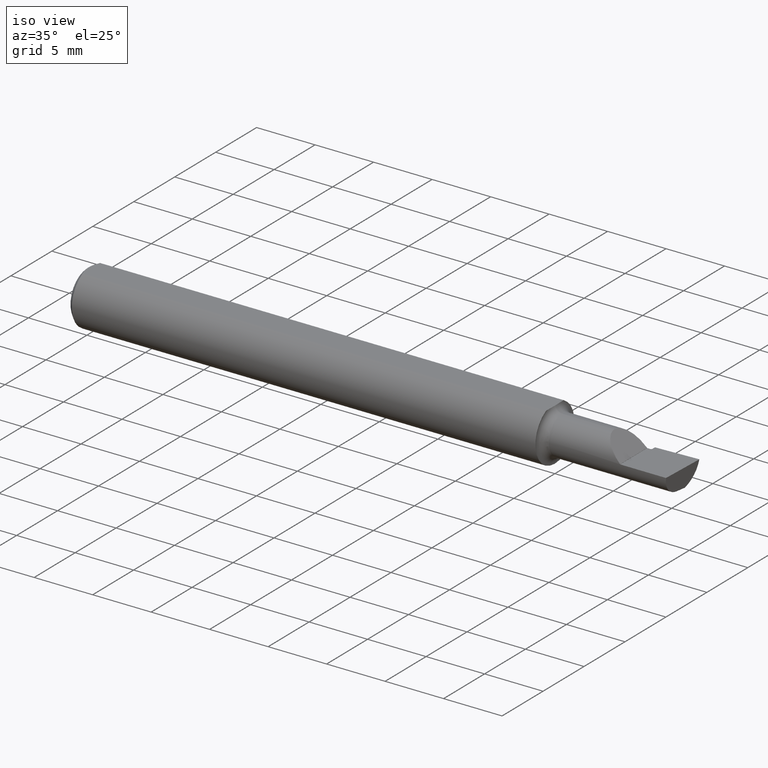
[diagram: clean part render]
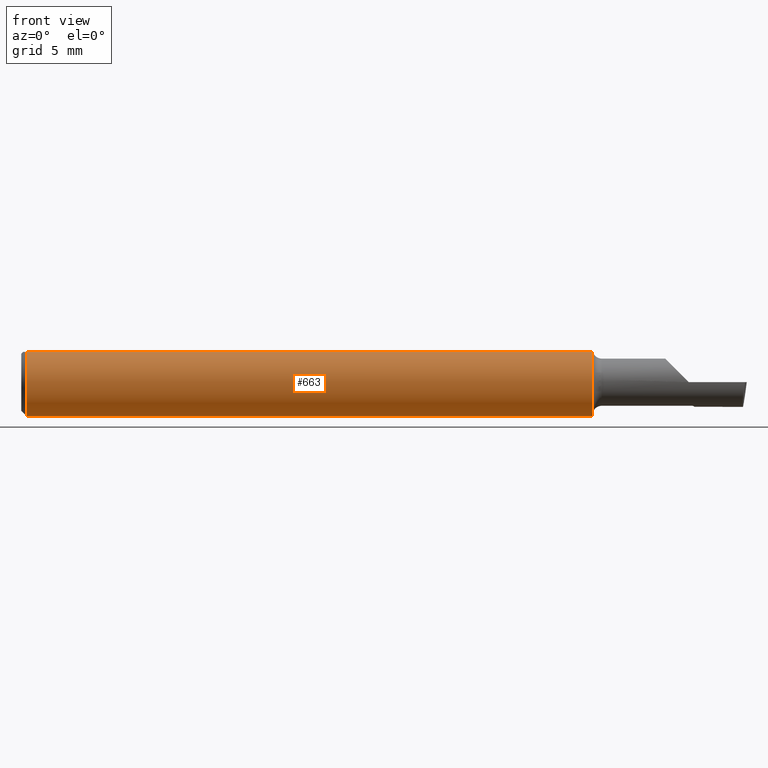
[diagram: tour spotlight — one face highlighted and labeled with its STEP entity id]
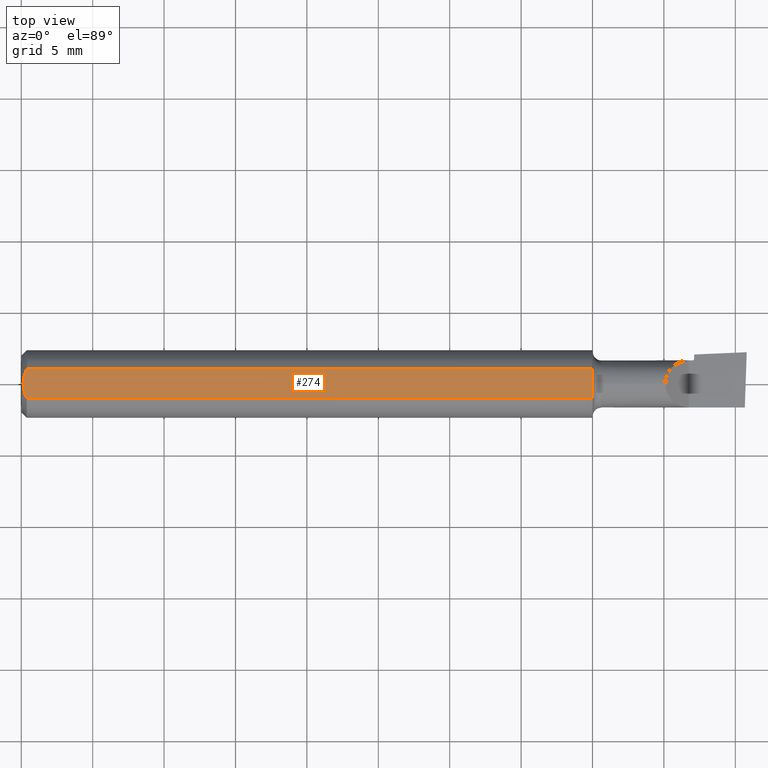
[diagram: tour spotlight — one face highlighted and labeled with its STEP entity id]
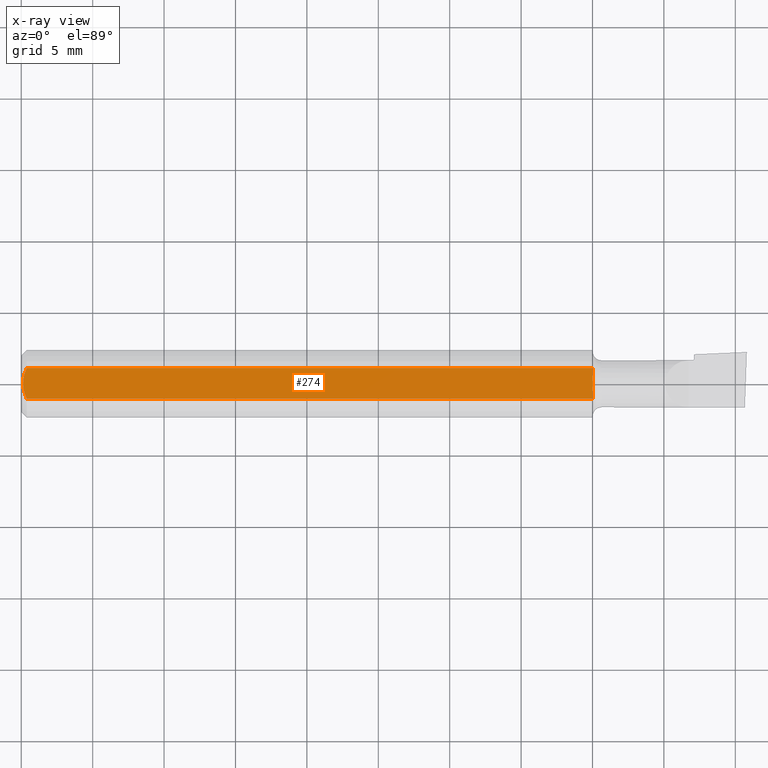
[diagram: x-ray of the same camera — body ghosted, this tour face saturated]
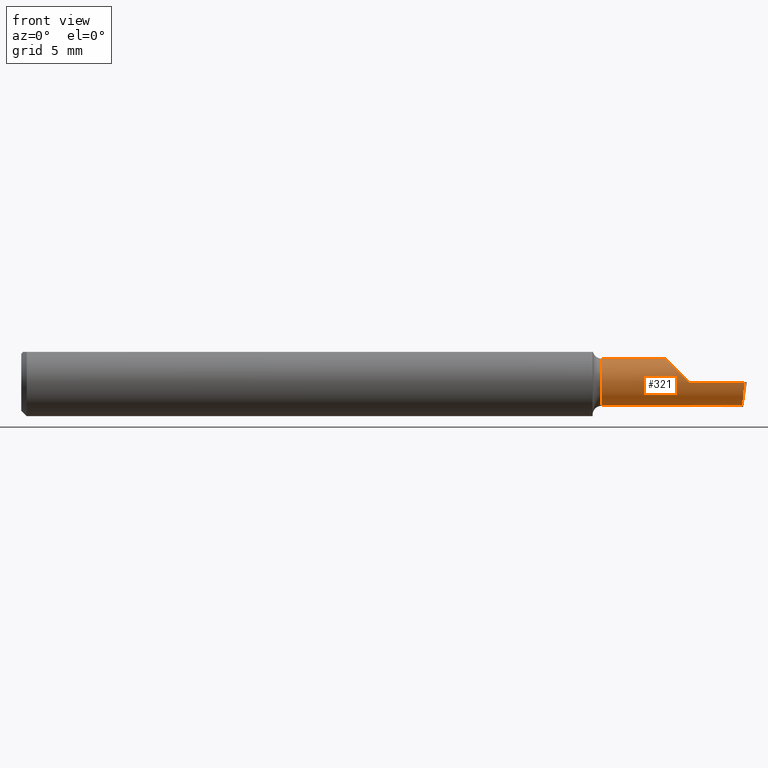
[diagram: tour spotlight — one face highlighted and labeled with its STEP entity id]
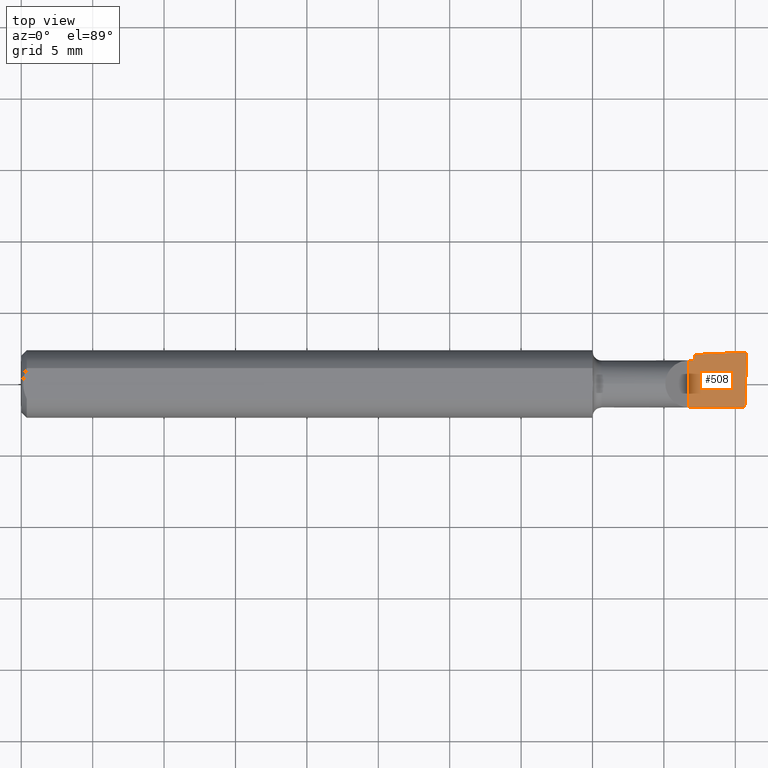
[diagram: tour spotlight — one face highlighted and labeled with its STEP entity id]
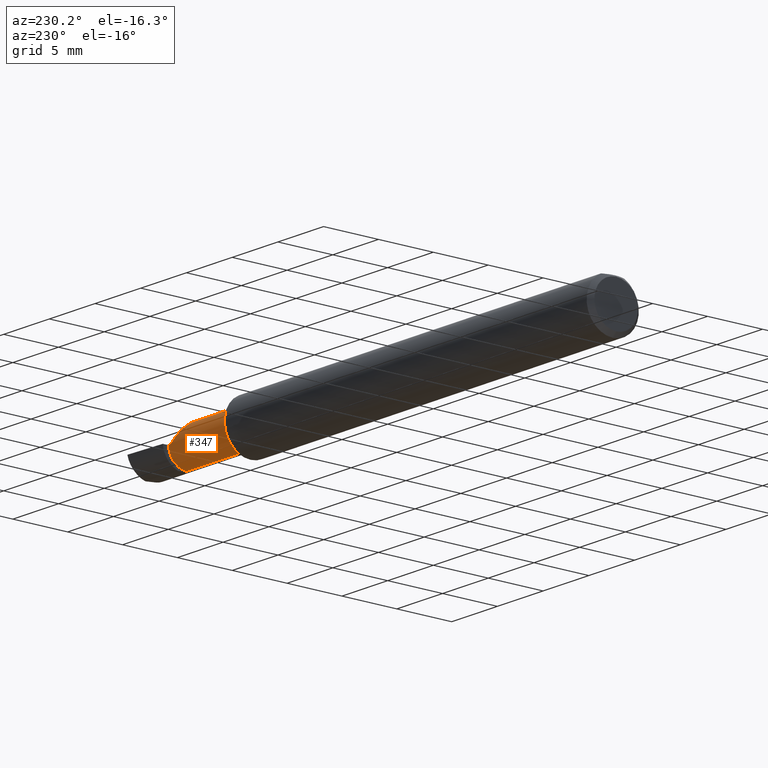
[diagram: tour spotlight — one face highlighted and labeled with its STEP entity id]
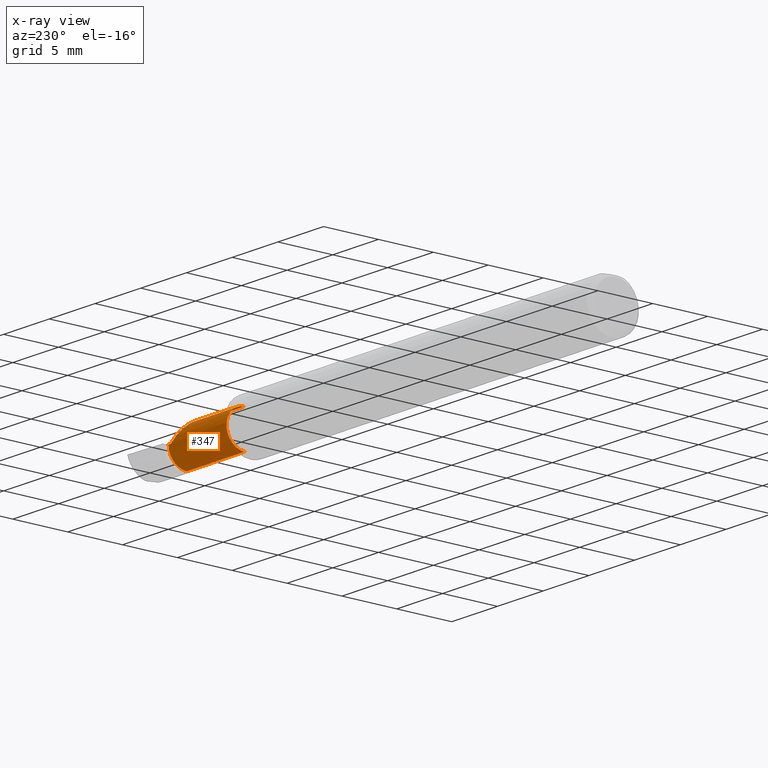
[diagram: x-ray of the same camera — body ghosted, this tour face saturated]
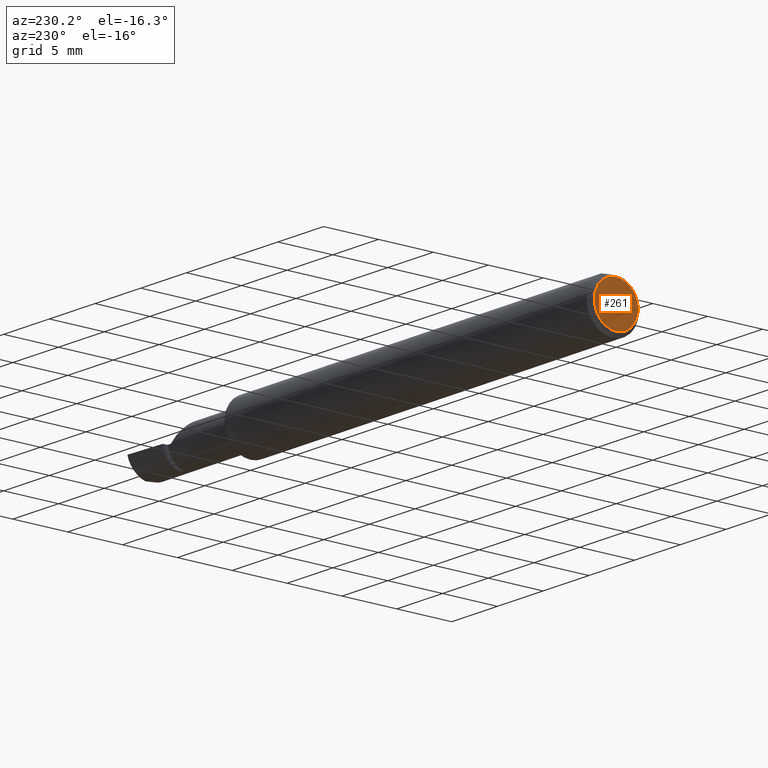
[diagram: tour spotlight — one face highlighted and labeled with its STEP entity id]
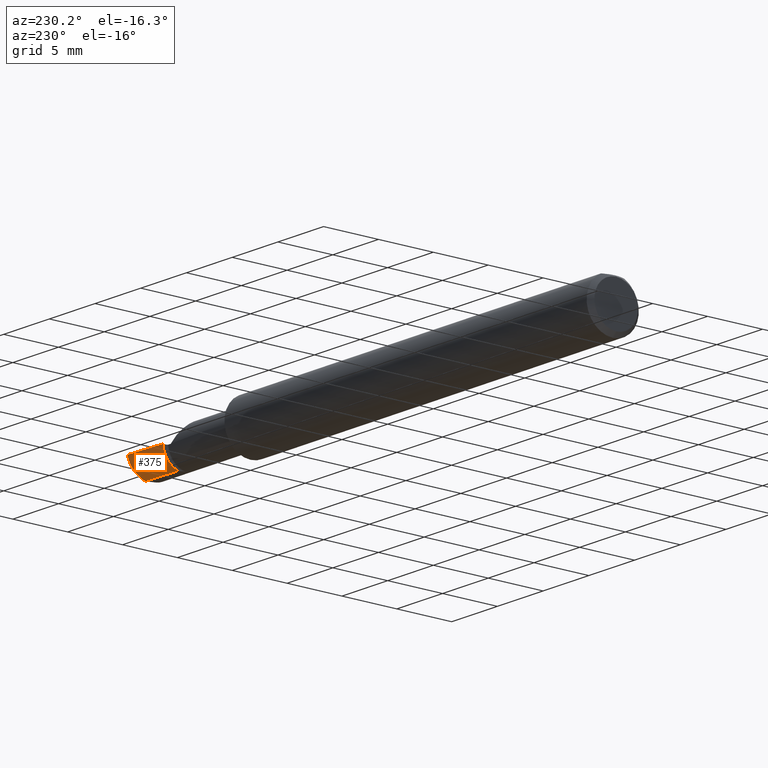
[diagram: tour spotlight — one face highlighted and labeled with its STEP entity id]
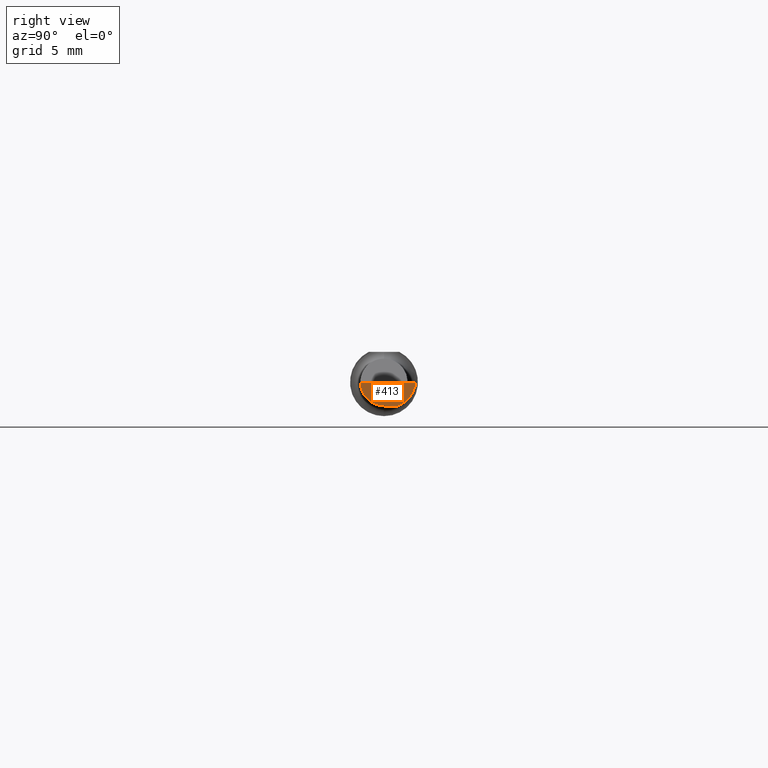
[diagram: tour spotlight — one face highlighted and labeled with its STEP entity id]
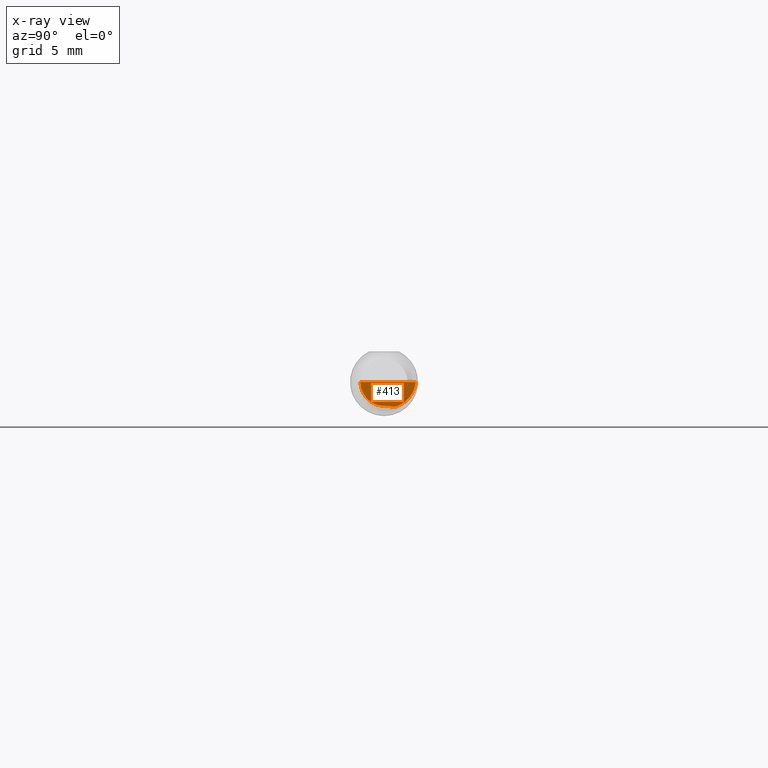
[diagram: x-ray of the same camera — body ghosted, this tour face saturated]
A machine part: a face-by-face anatomy tour. The part has 18 B-rep faces; the first image is the clean iso view, then the 8 largest visible faces are spotlighted one at a time (largest first), each with its STEP entity span.

Face 1 — front view, entity #663. In plain terms, the highlighted cylindrical surface (edge-blend (fillet) strip) has radius 2.3774 mm, axis along (-1, -0, -0).
Definition (entity closure, byte-faithful):
#1 = CARTESIAN_POINT ( 'NONE',  ( 2.000000000000000444, 0.000000000000000000, 0.000000000000000000 ) ) ;
#16 = ORIENTED_EDGE ( 'NONE', *, *, #560, .T. ) ;
#19 = EDGE_CURVE ( 'NONE', #222, #607, #577, .T. ) ;
#33 = DIRECTION ( 'NONE',  ( 0.000000000000000000, 0.000000000000000000, -1.000000000000000000 ) ) ;
#50 = DIRECTION ( 'NONE',  ( 0.000000000000000000, 0.000000000000000000, 1.000000000000000000 ) ) ;
#63 = LINE ( 'NONE', #632, #381 ) ;
#83 = CARTESIAN_POINT ( 'NONE',  ( 0.01500000000000188856, 0.000000000000000000, 0.000000000000000000 ) ) ;
#92 = AXIS2_PLACEMENT_3D ( 'NONE', #1, #291, #50 ) ;
#107 = DIRECTION ( 'NONE',  ( 0.000000000000000000, 0.000000000000000000, -1.000000000000000000 ) ) ;
#119 = CARTESIAN_POINT ( 'NONE',  ( 0.01500000000000188856, 0.04209513035969836975, 0.08360000000000000764 ) ) ;
#150 = CIRCLE ( 'NONE', #217, 0.09360000000000001652 ) ;
#161 = VERTEX_POINT ( 'NONE', #236 ) ;
#171 = DIRECTION ( 'NONE',  ( 1.000000000000000000, 0.000000000000000000, 0.000000000000000000 ) ) ;
#180 = EDGE_CURVE ( 'NONE', #222, #161, #150, .T. ) ;
#217 = AXIS2_PLACEMENT_3D ( 'NONE', #484, #442, #33 ) ;
#222 = VERTEX_POINT ( 'NONE', #645 ) ;
#229 = ORIENTED_EDGE ( 'NONE', *, *, #486, .T. ) ;
#236 = CARTESIAN_POINT ( 'NONE',  ( 1.575000000000000178, 0.04209513035969836975, 0.08360000000000000764 ) ) ;
#269 = CARTESIAN_POINT ( 'NONE',  ( 0.01500000000000188856, 0.000000000000000000, 0.000000000000000000 ) ) ;
#280 = CIRCLE ( 'NONE', #444, 0.09360000000000001652 ) ;
#285 = ORIENTED_EDGE ( 'NONE', *, *, #416, .T. ) ;
#291 = DIRECTION ( 'NONE',  ( -1.000000000000000000, -0.000000000000000000, -0.000000000000000000 ) ) ;
#324 = DIRECTION ( 'NONE',  ( -1.000000000000000000, -0.000000000000000000, -0.000000000000000000 ) ) ;
#329 = AXIS2_PLACEMENT_3D ( 'NONE', #269, #567, #107 ) ;
#353 = CYLINDRICAL_SURFACE ( 'NONE', #92, 0.09360000000000001652 ) ;
#369 = ORIENTED_EDGE ( 'NONE', *, *, #19, .T. ) ;
#377 = CARTESIAN_POINT ( 'NONE',  ( 2.000000000000000444, -0.04209513035969835587, 0.08360000000000000764 ) ) ;
#381 = VECTOR ( 'NONE', #171, 39.37007874015748143 ) ;
#398 = EDGE_LOOP ( 'NONE', ( #490, #369, #229, #16, #285 ) ) ;
#412 = VERTEX_POINT ( 'NONE', #119 ) ;
#416 = EDGE_CURVE ( 'NONE', #412, #161, #63, .T. ) ;
#428 = DIRECTION ( 'NONE',  ( 1.000000000000000000, -0.000000000000000000, -0.000000000000000000 ) ) ;
#442 = DIRECTION ( 'NONE',  ( 1.000000000000000000, 0.000000000000000000, 0.000000000000000000 ) ) ;
#444 = AXIS2_PLACEMENT_3D ( 'NONE', #83, #428, #487 ) ;
#461 = VECTOR ( 'NONE', #324, 39.37007874015748143 ) ;
#484 = CARTESIAN_POINT ( 'NONE',  ( 1.575000000000000178, 0.000000000000000000, 0.000000000000000000 ) ) ;
#486 = EDGE_CURVE ( 'NONE', #607, #629, #515, .T. ) ;
#487 = DIRECTION ( 'NONE',  ( 0.000000000000000000, 0.000000000000000000, -1.000000000000000000 ) ) ;
#490 = ORIENTED_EDGE ( 'NONE', *, *, #180, .F. ) ;
#515 = CIRCLE ( 'NONE', #329, 0.09360000000000001652 ) ;
#537 = CARTESIAN_POINT ( 'NONE',  ( 0.01499999999997319970, -0.04209513035984148444, 0.08360000000000000764 ) ) ;
#560 = EDGE_CURVE ( 'NONE', #629, #412, #280, .T. ) ;
#567 = DIRECTION ( 'NONE',  ( 1.000000000000000000, -0.000000000000000000, -0.000000000000000000 ) ) ;
#577 = LINE ( 'NONE', #377, #461 ) ;
#585 = CARTESIAN_POINT ( 'NONE',  ( 0.01500000000000188856, 0.000000000000000000, -0.09360000000000001652 ) ) ;
#607 = VERTEX_POINT ( 'NONE', #537 ) ;
#608 = FACE_OUTER_BOUND ( 'NONE', #398, .T. ) ;
#629 = VERTEX_POINT ( 'NONE', #585 ) ;
#632 = CARTESIAN_POINT ( 'NONE',  ( 2.000000000000000444, 0.04209513035969835587, 0.08360000000000000764 ) ) ;
#645 = CARTESIAN_POINT ( 'NONE',  ( 1.575000000000000178, -0.04209513035984148444, 0.08360000000000000764 ) ) ;
#663 = ADVANCED_FACE ( 'NONE', ( #608 ), #353, .T. ) ;

Face 2 — top view, entity #274. An x-ray twin of the same camera follows (body ghosted, this face saturated) — the face is partly hidden behind the body. In plain terms, the highlighted planar face has unit normal (-0, 0, -1).
Definition (entity closure, byte-faithful):
#2 = CARTESIAN_POINT ( 'NONE',  ( 0.000000000000000000, 0.04793338999999999933, 0.08360000000000000764 ) ) ;
#5 = ORIENTED_EDGE ( 'NONE', *, *, #109, .F. ) ;
#6 = AXIS2_PLACEMENT_3D ( 'NONE', #2, #197, #360 ) ;
#8 = CARTESIAN_POINT ( 'NONE',  ( 0.01203159747439211912, 0.03549478314559915276, 0.08360000000000003539 ) ) ;
#15 = CARTESIAN_POINT ( 'NONE',  ( 0.005000000000001862330, 0.007340705555993278647, 0.08359999999999999376 ) ) ;
#19 = EDGE_CURVE ( 'NONE', #222, #607, #577, .T. ) ;
#46 = EDGE_LOOP ( 'NONE', ( #513, #618, #182, #332, #158, #5, #366, #211 ) ) ;
#63 = LINE ( 'NONE', #632, #381 ) ;
#78 = LINE ( 'NONE', #438, #139 ) ;
#109 = EDGE_CURVE ( 'NONE', #639, #222, #78, .T. ) ;
#118 = VECTOR ( 'NONE', #345, 39.37007874015748143 ) ;
#119 = CARTESIAN_POINT ( 'NONE',  ( 0.01500000000000188856, 0.04209513035969836975, 0.08360000000000000764 ) ) ;
#122 = CARTESIAN_POINT ( 'NONE',  ( 0.005000000000001869269, 1.023804700932481731E-17, 0.08360000000000000764 ) ) ;
#131 = CARTESIAN_POINT ( 'NONE',  ( 0.005981945000910308084, -0.01453549720624408223, 0.08360000000000000764 ) ) ;
#132 = CARTESIAN_POINT ( 'NONE',  ( 0.005000000000001869269, 1.023804700932481731E-17, 0.08360000000000000764 ) ) ;
#139 = VECTOR ( 'NONE', #542, 39.37007874015748143 ) ;
#144 = EDGE_CURVE ( 'NONE', #583, #607, #642, .T. ) ;
#158 = ORIENTED_EDGE ( 'NONE', *, *, #19, .F. ) ;
#161 = VERTEX_POINT ( 'NONE', #236 ) ;
#171 = DIRECTION ( 'NONE',  ( 1.000000000000000000, 0.000000000000000000, 0.000000000000000000 ) ) ;
#177 = CARTESIAN_POINT ( 'NONE',  ( 1.575000000000000178, -0.02777769619496649883, 0.08360000000000000764 ) ) ;
#182 = ORIENTED_EDGE ( 'NONE', *, *, #441, .T. ) ;
#190 = LINE ( 'NONE', #549, #118 ) ;
#197 = DIRECTION ( 'NONE',  ( -0.000000000000000000, 0.000000000000000000, -1.000000000000000000 ) ) ;
#210 = CARTESIAN_POINT ( 'NONE',  ( 0.009483687754785769669, 0.02856776309113262177, 0.08360000000000003539 ) ) ;
#211 = ORIENTED_EDGE ( 'NONE', *, *, #536, .F. ) ;
#222 = VERTEX_POINT ( 'NONE', #645 ) ;
#226 = CARTESIAN_POINT ( 'NONE',  ( 1.575666797554629461, -0.01111010775643349498, 0.08360000000000000764 ) ) ;
#232 = CARTESIAN_POINT ( 'NONE',  ( 0.01499999999997319970, -0.04209513035984148444, 0.08360000000000000764 ) ) ;
#235 = CARTESIAN_POINT ( 'NONE',  ( 1.575000000000000178, 0.02777908199770195985, 0.08360000000000000764 ) ) ;
#236 = CARTESIAN_POINT ( 'NONE',  ( 1.575000000000000178, 0.04209513035969836975, 0.08360000000000000764 ) ) ;
#243 = CARTESIAN_POINT ( 'NONE',  ( 0.009483685532752042513, -0.02856415438847174915, 0.08359999999999997988 ) ) ;
#259 = CARTESIAN_POINT ( 'NONE',  ( 0.01500000000000188856, 0.04209513035969836975, 0.08360000000000000764 ) ) ;
#266 = VERTEX_POINT ( 'NONE', #405 ) ;
#274 = ADVANCED_FACE ( 'NONE', ( #613 ), #611, .F. ) ;
#276 = CARTESIAN_POINT ( 'NONE',  ( 1.575000000000000178, -0.03333226664959939439, 0.08360000000000000764 ) ) ;
#324 = DIRECTION ( 'NONE',  ( -1.000000000000000000, -0.000000000000000000, -0.000000000000000000 ) ) ;
#331 = CARTESIAN_POINT ( 'NONE',  ( 1.575000000000000178, 0.03333226664959939439, 0.08360000000000000764 ) ) ;
#332 = ORIENTED_EDGE ( 'NONE', *, *, #144, .T. ) ;
#336 = CARTESIAN_POINT ( 'NONE',  ( 1.575245929109221787, -0.02222169579281116011, 0.08359999999999997988 ) ) ;
#345 = DIRECTION ( 'NONE',  ( 0.000000000000000000, -1.000000000000000000, 0.000000000000000000 ) ) ;
#346 = CARTESIAN_POINT ( 'NONE',  ( 0.01202468825749296311, -0.03547942025930517912, 0.08360000000000000764 ) ) ;
#360 = DIRECTION ( 'NONE',  ( -1.000000000000000000, 0.000000000000000000, 0.000000000000000000 ) ) ;
#366 = ORIENTED_EDGE ( 'NONE', *, *, #599, .F. ) ;
#377 = CARTESIAN_POINT ( 'NONE',  ( 2.000000000000000444, -0.04209513035969835587, 0.08360000000000000764 ) ) ;
#381 = VECTOR ( 'NONE', #171, 39.37007874015748143 ) ;
#388 = CARTESIAN_POINT ( 'NONE',  ( 1.575000000000000178, -0.03333226664959939439, 0.08360000000000000764 ) ) ;
#405 = CARTESIAN_POINT ( 'NONE',  ( 1.575833080461093161, 0.000000000000000000, 0.08360000000000000764 ) ) ;
#412 = VERTEX_POINT ( 'NONE', #119 ) ;
#416 = EDGE_CURVE ( 'NONE', #412, #161, #63, .T. ) ;
#433 = CARTESIAN_POINT ( 'NONE',  ( 1.575833080461093161, 0.000000000000000000, 0.08360000000000000764 ) ) ;
#435 = VERTEX_POINT ( 'NONE', #331 ) ;
#438 = CARTESIAN_POINT ( 'NONE',  ( 1.575000000000000178, 0.04793338999999999933, 0.08360000000000000764 ) ) ;
#440 = CARTESIAN_POINT ( 'NONE',  ( 1.575245918354430064, 0.02222201299679439634, 0.08360000000000000764 ) ) ;
#441 = EDGE_CURVE ( 'NONE', #412, #583, #504, .T. ) ;
#445 = CARTESIAN_POINT ( 'NONE',  ( 1.575666838436687200, 0.01110899514287943049, 0.08359999999999997988 ) ) ;
#461 = VECTOR ( 'NONE', #324, 39.37007874015748143 ) ;
#473 = B_SPLINE_CURVE_WITH_KNOTS ( 'NONE', 3,
 ( #640, #235, #440, #445, #596, #647 ),
 .UNSPECIFIED., .F., .F.,
 ( 4, 2, 4 ),
 ( 0.008338704319225084469, 0.008764574032673090598, 0.009190443746121098462 ),
 .UNSPECIFIED. ) ;
#489 = CARTESIAN_POINT ( 'NONE',  ( 0.005000000000001861462, -0.007340015043780886116, 0.08360000000000000764 ) ) ;
#504 = B_SPLINE_CURVE_WITH_KNOTS ( 'NONE', 3,
 ( #259, #8, #210, #525, #15, #516 ),
 .UNSPECIFIED., .F., .F.,
 ( 4, 2, 4 ),
 ( 0.001498230153270230626, 0.002046825164355182622, 0.002595420175440135268 ),
 .UNSPECIFIED. ) ;
#513 = ORIENTED_EDGE ( 'NONE', *, *, #575, .F. ) ;
#516 = CARTESIAN_POINT ( 'NONE',  ( 0.005000000000001869269, 1.023804700932481731E-17, 0.08360000000000000764 ) ) ;
#523 = B_SPLINE_CURVE_WITH_KNOTS ( 'NONE', 3,
 ( #433, #545, #226, #336, #177, #276 ),
 .UNSPECIFIED., .F., .F.,
 ( 4, 2, 4 ),
 ( 1.682429918840963769E-15, 0.0004232511140544112371, 0.0008465022281071401178 ),
 .UNSPECIFIED. ) ;
#525 = CARTESIAN_POINT ( 'NONE',  ( 0.005976064474244529613, 0.01450833282979353649, 0.08359999999999996600 ) ) ;
#536 = EDGE_CURVE ( 'NONE', #435, #266, #473, .T. ) ;
#537 = CARTESIAN_POINT ( 'NONE',  ( 0.01499999999997319970, -0.04209513035984148444, 0.08360000000000000764 ) ) ;
#542 = DIRECTION ( 'NONE',  ( 0.000000000000000000, -1.000000000000000000, 0.000000000000000000 ) ) ;
#545 = CARTESIAN_POINT ( 'NONE',  ( 1.575833080461092051, -0.005554570454699161129, 0.08360000000000000764 ) ) ;
#549 = CARTESIAN_POINT ( 'NONE',  ( 1.575000000000000178, 0.04793338999999999933, 0.08360000000000000764 ) ) ;
#575 = EDGE_CURVE ( 'NONE', #161, #435, #190, .T. ) ;
#577 = LINE ( 'NONE', #377, #461 ) ;
#583 = VERTEX_POINT ( 'NONE', #132 ) ;
#596 = CARTESIAN_POINT ( 'NONE',  ( 1.575833080461094271, 0.005588935856926191201, 0.08360000000000000764 ) ) ;
#599 = EDGE_CURVE ( 'NONE', #266, #639, #523, .T. ) ;
#607 = VERTEX_POINT ( 'NONE', #537 ) ;
#611 = PLANE ( 'NONE',  #6 ) ;
#613 = FACE_OUTER_BOUND ( 'NONE', #46, .T. ) ;
#618 = ORIENTED_EDGE ( 'NONE', *, *, #416, .F. ) ;
#632 = CARTESIAN_POINT ( 'NONE',  ( 2.000000000000000444, 0.04209513035969835587, 0.08360000000000000764 ) ) ;
#639 = VERTEX_POINT ( 'NONE', #388 ) ;
#640 = CARTESIAN_POINT ( 'NONE',  ( 1.575000000000000178, 0.03333226664959939439, 0.08360000000000000764 ) ) ;
#642 = B_SPLINE_CURVE_WITH_KNOTS ( 'NONE', 3,
 ( #122, #489, #131, #243, #346, #232 ),
 .UNSPECIFIED., .F., .F.,
 ( 4, 2, 4 ),
 ( 0.002595420175440135268, 0.003143963582281883787, 0.003692506989123632306 ),
 .UNSPECIFIED. ) ;
#645 = CARTESIAN_POINT ( 'NONE',  ( 1.575000000000000178, -0.04209513035984148444, 0.08360000000000000764 ) ) ;
#647 = CARTESIAN_POINT ( 'NONE',  ( 1.575833080461093161, 0.000000000000000000, 0.08360000000000000764 ) ) ;

Face 3 — front view, entity #321. In plain terms, the highlighted cylindrical surface (edge-blend (fillet) strip) has radius 1.651 mm, axis along (-1, -0, -0).
Definition (entity closure, byte-faithful):
#9 =( BOUNDED_CURVE ( )  B_SPLINE_CURVE ( 3, ( #621, #160, #376, #426 ),
 .UNSPECIFIED., .F., .T. ) 
 B_SPLINE_CURVE_WITH_KNOTS ( ( 4, 4 ),
 ( 0.000000000000000000, 1.561565426471250406 ),
 .UNSPECIFIED. ) 
 CURVE ( )  GEOMETRIC_REPRESENTATION_ITEM ( )  RATIONAL_B_SPLINE_CURVE ( ( 1.000000000000000000, 0.8069085694611369819, 0.8069085694611369819, 1.000000000000000000 ) ) 
 REPRESENTATION_ITEM ( '' )  );
#11 = EDGE_CURVE ( 'NONE', #529, #566, #76, .T. ) ;
#13 = CARTESIAN_POINT ( 'NONE',  ( 0.000000000000000000, 7.960204194457796709E-18, -0.06500000000000000222 ) ) ;
#14 = EDGE_CURVE ( 'NONE', #72, #154, #625, .T. ) ;
#17 = VECTOR ( 'NONE', #165, 39.37007874015748143 ) ;
#31 = CARTESIAN_POINT ( 'NONE',  ( 1.850000000000000311, -0.005665123278597547149, -0.06475265537596341936 ) ) ;
#37 = CARTESIAN_POINT ( 'NONE',  ( 1.994651758480620707, -0.06499966425809539095, -0.0002089170526278407846 ) ) ;
#40 = ORIENTED_EDGE ( 'NONE', *, *, #558, .F. ) ;
#48 = ORIENTED_EDGE ( 'NONE', *, *, #14, .F. ) ;
#52 = CIRCLE ( 'NONE', #81, 0.06500000000000000222 ) ;
#58 = VERTEX_POINT ( 'NONE', #434 ) ;
#60 = ORIENTED_EDGE ( 'NONE', *, *, #570, .T. ) ;
#70 = DIRECTION ( 'NONE',  ( -1.000000000000000000, -0.000000000000000000, -0.000000000000000000 ) ) ;
#72 = VERTEX_POINT ( 'NONE', #597 ) ;
#76 =( BOUNDED_CURVE ( )  B_SPLINE_CURVE ( 3, ( #320, #168, #260, #468 ),
 .UNSPECIFIED., .F., .T. ) 
 B_SPLINE_CURVE_WITH_KNOTS ( ( 4, 4 ),
 ( 4.991545124274583856, 6.471860874433886579 ),
 .UNSPECIFIED. ) 
 CURVE ( )  GEOMETRIC_REPRESENTATION_ITEM ( )  RATIONAL_B_SPLINE_CURVE ( ( 1.000000000000000000, 0.8255747308461860445, 0.8255747308461860445, 1.000000000000000000 ) ) 
 REPRESENTATION_ITEM ( '' )  );
#81 = AXIS2_PLACEMENT_3D ( 'NONE', #635, #382, #653 ) ;
#95 = DIRECTION ( 'NONE',  ( 1.000000000000000000, 8.516783790608731163E-18, -1.073631536549218441E-16 ) ) ;
#96 = VERTEX_POINT ( 'NONE', #547 ) ;
#98 = DIRECTION ( 'NONE',  ( 0.000000000000000000, 0.000000000000000000, 1.000000000000000000 ) ) ;
#105 = DIRECTION ( 'NONE',  ( -1.000000000000000000, -0.000000000000000000, -0.000000000000000000 ) ) ;
#112 = LINE ( 'NONE', #619, #582 ) ;
#115 = ORIENTED_EDGE ( 'NONE', *, *, #292, .T. ) ;
#145 = DIRECTION ( 'NONE',  ( -1.000000000000000000, -0.000000000000000000, -0.000000000000000000 ) ) ;
#154 = VERTEX_POINT ( 'NONE', #287 ) ;
#157 = DIRECTION ( 'NONE',  ( -1.000000000000000000, -0.000000000000000000, -0.000000000000000000 ) ) ;
#160 = CARTESIAN_POINT ( 'NONE',  ( 1.775600000000000955, -0.03779801798803825857, 0.06500000000000000222 ) ) ;
#162 = AXIS2_PLACEMENT_3D ( 'NONE', #308, #145, #98 ) ;
#165 = DIRECTION ( 'NONE',  ( -1.000000000000000000, -0.000000000000000000, -0.000000000000000000 ) ) ;
#168 = CARTESIAN_POINT ( 'NONE',  ( 1.990306868046896271, -0.06488588929797120541, -0.03560734009195623551 ) ) ;
#174 = VECTOR ( 'NONE', #95, 39.37007874015748143 ) ;
#187 = DIRECTION ( 'NONE',  ( -1.000000000000000000, -0.000000000000000000, -0.000000000000000000 ) ) ;
#189 = ORIENTED_EDGE ( 'NONE', *, *, #11, .F. ) ;
#192 = ORIENTED_EDGE ( 'NONE', *, *, #264, .T. ) ;
#199 = DIRECTION ( 'NONE',  ( 0.1218275818249038717, -0.003190167502629706348, 0.9925461516413236485 ) ) ;
#200 = CARTESIAN_POINT ( 'NONE',  ( 1.775600000000000511, 0.000000000000000000, 0.06500000000000000222 ) ) ;
#244 = VERTEX_POINT ( 'NONE', #200 ) ;
#255 = CIRCLE ( 'NONE', #579, 0.06500000000000000222 ) ;
#260 = CARTESIAN_POINT ( 'NONE',  ( 1.987938684748457696, -0.04092902677841792763, -0.06166746358805715728 ) ) ;
#264 = EDGE_CURVE ( 'NONE', #96, #58, #255, .T. ) ;
#265 = CARTESIAN_POINT ( 'NONE',  ( 0.000000000000000000, 0.000000000000000000, 0.06500000000000000222 ) ) ;
#287 = CARTESIAN_POINT ( 'NONE',  ( 1.599999999999999867, 9.491012693391984829E-18, -0.06500000000000000222 ) ) ;
#292 = EDGE_CURVE ( 'NONE', #634, #566, #305, .T. ) ;
#297 = CARTESIAN_POINT ( 'NONE',  ( 1.840000000000000302, 0.000000000000000000, 0.000000000000000000 ) ) ;
#301 = FACE_OUTER_BOUND ( 'NONE', #652, .T. ) ;
#303 = CARTESIAN_POINT ( 'NONE',  ( 1.933783156355727062, -0.06340542776733958108, -0.4961139287315173285 ) ) ;
#305 = LINE ( 'NONE', #557, #174 ) ;
#308 = CARTESIAN_POINT ( 'NONE',  ( 0.000000000000000000, 0.000000000000000000, 0.000000000000000000 ) ) ;
#312 = ORIENTED_EDGE ( 'NONE', *, *, #367, .F. ) ;
#314 = CARTESIAN_POINT ( 'NONE',  ( 1.994677413158865376, -0.06500000000000002998, -6.829619984160658046E-17 ) ) ;
#320 = CARTESIAN_POINT ( 'NONE',  ( 1.994651758480620707, -0.06499966425809539095, -0.0002089170526278407846 ) ) ;
#321 = ADVANCED_FACE ( 'NONE', ( #301 ), #455, .T. ) ;
#349 = CARTESIAN_POINT ( 'NONE',  ( 1.599999999999999867, 0.000000000000000000, 0.06500000000000000222 ) ) ;
#352 = CIRCLE ( 'NONE', #402, 0.06500000000000000222 ) ;
#367 = EDGE_CURVE ( 'NONE', #244, #58, #9, .T. ) ;
#376 = CARTESIAN_POINT ( 'NONE',  ( 1.802203592376026675, -0.06464832592881054885, 0.03839640762397369261 ) ) ;
#382 = DIRECTION ( 'NONE',  ( -1.000000000000000000, -0.000000000000000000, -0.000000000000000000 ) ) ;
#392 = DIRECTION ( 'NONE',  ( 0.000000000000000000, 0.000000000000000000, 1.000000000000000000 ) ) ;
#402 = AXIS2_PLACEMENT_3D ( 'NONE', #600, #187, #392 ) ;
#417 = LINE ( 'NONE', #265, #540 ) ;
#426 = CARTESIAN_POINT ( 'NONE',  ( 1.840000000000000302, -0.06499723071023870424, 0.0006000000000001076087 ) ) ;
#434 = CARTESIAN_POINT ( 'NONE',  ( 1.840000000000000302, -0.06499723071023870424, 0.0006000000000001076087 ) ) ;
#455 = CYLINDRICAL_SURFACE ( 'NONE', #162, 0.06500000000000000222 ) ;
#456 = EDGE_CURVE ( 'NONE', #244, #556, #417, .T. ) ;
#468 = CARTESIAN_POINT ( 'NONE',  ( 1.988786421613012667, -0.005665123278597546282, -0.06475265537596341936 ) ) ;
#469 = EDGE_CURVE ( 'NONE', #497, #96, #112, .T. ) ;
#482 = ORIENTED_EDGE ( 'NONE', *, *, #469, .T. ) ;
#495 = VECTOR ( 'NONE', #199, 39.37007874015748854 ) ;
#497 = VERTEX_POINT ( 'NONE', #314 ) ;
#510 = LINE ( 'NONE', #303, #495 ) ;
#529 = VERTEX_POINT ( 'NONE', #37 ) ;
#532 = ORIENTED_EDGE ( 'NONE', *, *, #456, .T. ) ;
#540 = VECTOR ( 'NONE', #70, 39.37007874015748143 ) ;
#547 = CARTESIAN_POINT ( 'NONE',  ( 1.840000000000000302, -0.06500000000000000222, -1.868634782302818344E-17 ) ) ;
#556 = VERTEX_POINT ( 'NONE', #349 ) ;
#557 = CARTESIAN_POINT ( 'NONE',  ( 1.855000000000000204, -0.005665123278597547149, -0.06475265537596341936 ) ) ;
#558 = EDGE_CURVE ( 'NONE', #154, #556, #352, .T. ) ;
#564 = DIRECTION ( 'NONE',  ( 0.000000000000000000, 0.000000000000000000, 1.000000000000000000 ) ) ;
#566 = VERTEX_POINT ( 'NONE', #592 ) ;
#570 = EDGE_CURVE ( 'NONE', #72, #634, #52, .T. ) ;
#579 = AXIS2_PLACEMENT_3D ( 'NONE', #297, #105, #564 ) ;
#582 = VECTOR ( 'NONE', #157, 39.37007874015748143 ) ;
#591 = ORIENTED_EDGE ( 'NONE', *, *, #650, .T. ) ;
#592 = CARTESIAN_POINT ( 'NONE',  ( 1.988786421613012667, -0.005665123278597546282, -0.06475265537596341936 ) ) ;
#597 = CARTESIAN_POINT ( 'NONE',  ( 1.850000000000000311, 7.960204194457796709E-18, -0.06500000000000000222 ) ) ;
#600 = CARTESIAN_POINT ( 'NONE',  ( 1.599999999999999867, 0.000000000000000000, 0.000000000000000000 ) ) ;
#619 = CARTESIAN_POINT ( 'NONE',  ( 0.000000000000000000, -0.06500000000000000222, -1.868634782302818344E-17 ) ) ;
#621 = CARTESIAN_POINT ( 'NONE',  ( 1.775600000000000511, 0.000000000000000000, 0.06500000000000000222 ) ) ;
#625 = LINE ( 'NONE', #13, #17 ) ;
#634 = VERTEX_POINT ( 'NONE', #31 ) ;
#635 = CARTESIAN_POINT ( 'NONE',  ( 1.850000000000000311, 0.000000000000000000, 0.000000000000000000 ) ) ;
#650 = EDGE_CURVE ( 'NONE', #529, #497, #510, .T. ) ;
#652 = EDGE_LOOP ( 'NONE', ( #48, #60, #115, #189, #591, #482, #192, #312, #532, #40 ) ) ;
#653 = DIRECTION ( 'NONE',  ( 0.000000000000000000, 0.000000000000000000, 1.000000000000000000 ) ) ;

Face 4 — top view, entity #508. In plain terms, the highlighted planar face has unit normal (-0, 0, -1).
Definition (entity closure, byte-faithful):
#24 = LINE ( 'NONE', #368, #207 ) ;
#36 = DIRECTION ( 'NONE',  ( -0.9990482215818576872, -0.04361938736533622213, 0.000000000000000000 ) ) ;
#38 = EDGE_CURVE ( 'NONE', #502, #429, #117, .T. ) ;
#41 = CARTESIAN_POINT ( 'NONE',  ( 1.999986001855434736, 0.08759761744008441597, -1.868634782302818344E-17 ) ) ;
#51 = LINE ( 'NONE', #509, #372 ) ;
#89 = ORIENTED_EDGE ( 'NONE', *, *, #247, .T. ) ;
#96 = VERTEX_POINT ( 'NONE', #547 ) ;
#101 = CARTESIAN_POINT ( 'NONE',  ( 2.000001177757728232, 0.08803385514183426075, -1.868634782302818344E-17 ) ) ;
#104 = EDGE_CURVE ( 'NONE', #519, #429, #550, .T. ) ;
#112 = LINE ( 'NONE', #619, #582 ) ;
#117 = LINE ( 'NONE', #427, #451 ) ;
#124 = DIRECTION ( 'NONE',  ( -0.000000000000000000, 0.000000000000000000, -1.000000000000000000 ) ) ;
#142 = EDGE_LOOP ( 'NONE', ( #89, #348, #418, #391, #572, #620, #637 ) ) ;
#157 = DIRECTION ( 'NONE',  ( -1.000000000000000000, -0.000000000000000000, -0.000000000000000000 ) ) ;
#179 = CARTESIAN_POINT ( 'NONE',  ( 1.840000000000000302, 0.09359999999999998876, -1.868634782302818344E-17 ) ) ;
#205 = VECTOR ( 'NONE', #36, 39.37007874015748143 ) ;
#207 = VECTOR ( 'NONE', #474, 39.37007874015748143 ) ;
#247 = EDGE_CURVE ( 'NONE', #497, #519, #665, .T. ) ;
#256 = AXIS2_PLACEMENT_3D ( 'NONE', #179, #124, #541 ) ;
#313 = EDGE_CURVE ( 'NONE', #630, #587, #51, .T. ) ;
#314 = CARTESIAN_POINT ( 'NONE',  ( 1.994677413158865376, -0.06500000000000002998, -6.829619984160658046E-17 ) ) ;
#326 = CARTESIAN_POINT ( 'NONE',  ( 1.855000000000000204, 0.08126739189054085766, -1.894732701424001633E-17 ) ) ;
#327 = DIRECTION ( 'NONE',  ( 0.000000000000000000, 1.000000000000000000, 0.000000000000000000 ) ) ;
#344 = EDGE_CURVE ( 'NONE', #502, #587, #420, .T. ) ;
#348 = ORIENTED_EDGE ( 'NONE', *, *, #104, .T. ) ;
#364 = CARTESIAN_POINT ( 'NONE',  ( 1.850000000000000311, 0.06999999999999999278, 0.000000000000000000 ) ) ;
#368 = CARTESIAN_POINT ( 'NONE',  ( 1.840000000000000302, 0.09359999999999998876, -1.868634782302818344E-17 ) ) ;
#372 = VECTOR ( 'NONE', #453, 39.37007874015748143 ) ;
#391 = ORIENTED_EDGE ( 'NONE', *, *, #344, .T. ) ;
#396 = PLANE ( 'NONE',  #256 ) ;
#418 = ORIENTED_EDGE ( 'NONE', *, *, #38, .F. ) ;
#420 = CIRCLE ( 'NONE', #594, 0.005000000000000083371 ) ;
#427 = CARTESIAN_POINT ( 'NONE',  ( 1.855000000000000204, 0.09359999999999998876, -1.868634782302818344E-17 ) ) ;
#429 = VERTEX_POINT ( 'NONE', #326 ) ;
#451 = VECTOR ( 'NONE', #327, 39.37007874015748143 ) ;
#453 = DIRECTION ( 'NONE',  ( 1.000000000000000000, 0.000000000000000000, 0.000000000000000000 ) ) ;
#469 = EDGE_CURVE ( 'NONE', #497, #96, #112, .T. ) ;
#471 = CARTESIAN_POINT ( 'NONE',  ( 1.855000000000000204, 0.06999999999999999278, -1.868634782302818344E-17 ) ) ;
#474 = DIRECTION ( 'NONE',  ( -0.000000000000000000, 1.000000000000000000, -0.000000000000000000 ) ) ;
#480 = EDGE_CURVE ( 'NONE', #96, #630, #24, .T. ) ;
#481 = CARTESIAN_POINT ( 'NONE',  ( 1.850000000000000311, 0.06500000000000000222, -1.868634782302818344E-17 ) ) ;
#483 = CARTESIAN_POINT ( 'NONE',  ( 1.840000000000000302, 0.06500000000000000222, -1.868634782302818344E-17 ) ) ;
#488 = FACE_OUTER_BOUND ( 'NONE', #142, .T. ) ;
#497 = VERTEX_POINT ( 'NONE', #314 ) ;
#500 = DIRECTION ( 'NONE',  ( -1.000000000000000000, 0.000000000000000000, 0.000000000000000000 ) ) ;
#502 = VERTEX_POINT ( 'NONE', #471 ) ;
#508 = ADVANCED_FACE ( 'NONE', ( #488 ), #396, .F. ) ;
#509 = CARTESIAN_POINT ( 'NONE',  ( 0.000000000000000000, 0.06500000000000000222, -1.868634782302818344E-17 ) ) ;
#511 = DIRECTION ( 'NONE',  ( -0.000000000000000000, -0.000000000000000000, -1.000000000000000000 ) ) ;
#519 = VERTEX_POINT ( 'NONE', #41 ) ;
#541 = DIRECTION ( 'NONE',  ( -1.000000000000000000, 0.000000000000000000, 0.000000000000000000 ) ) ;
#547 = CARTESIAN_POINT ( 'NONE',  ( 1.840000000000000302, -0.06500000000000000222, -1.868634782302818344E-17 ) ) ;
#550 = LINE ( 'NONE', #586, #205 ) ;
#572 = ORIENTED_EDGE ( 'NONE', *, *, #313, .F. ) ;
#582 = VECTOR ( 'NONE', #157, 39.37007874015748143 ) ;
#586 = CARTESIAN_POINT ( 'NONE',  ( 1.996531278631949347, 0.08744678096665912947, -1.920830620545185230E-17 ) ) ;
#587 = VERTEX_POINT ( 'NONE', #481 ) ;
#594 = AXIS2_PLACEMENT_3D ( 'NONE', #364, #511, #500 ) ;
#619 = CARTESIAN_POINT ( 'NONE',  ( 0.000000000000000000, -0.06500000000000000222, -1.868634782302818344E-17 ) ) ;
#620 = ORIENTED_EDGE ( 'NONE', *, *, #480, .F. ) ;
#630 = VERTEX_POINT ( 'NONE', #483 ) ;
#637 = ORIENTED_EDGE ( 'NONE', *, *, #469, .F. ) ;
#656 = DIRECTION ( 'NONE',  ( 0.03476711780020940584, 0.9993954410141494549, 0.000000000000000000 ) ) ;
#661 = VECTOR ( 'NONE', #656, 39.37007874015748854 ) ;
#665 = LINE ( 'NONE', #101, #661 ) ;

Face 5 — auxiliary view, entity #347. An x-ray twin of the same camera follows (body ghosted, this face saturated) — the face is partly hidden behind the body. In plain terms, the highlighted cylindrical surface (edge-blend (fillet) strip) has radius 1.651 mm, axis along (-1, -0, -0).
Definition (entity closure, byte-faithful):
#4 = CARTESIAN_POINT ( 'NONE',  ( 0.000000000000000000, 0.000000000000000000, 0.000000000000000000 ) ) ;
#7 = AXIS2_PLACEMENT_3D ( 'NONE', #21, #379, #319 ) ;
#13 = CARTESIAN_POINT ( 'NONE',  ( 0.000000000000000000, 7.960204194457796709E-18, -0.06500000000000000222 ) ) ;
#14 = EDGE_CURVE ( 'NONE', #72, #154, #625, .T. ) ;
#17 = VECTOR ( 'NONE', #165, 39.37007874015748143 ) ;
#21 = CARTESIAN_POINT ( 'NONE',  ( 1.599999999999999867, 0.000000000000000000, 0.000000000000000000 ) ) ;
#34 =( BOUNDED_CURVE ( )  B_SPLINE_CURVE ( 3, ( #333, #533, #342, #77 ),
 .UNSPECIFIED., .F., .T. ) 
 B_SPLINE_CURVE_WITH_KNOTS ( ( 4, 4 ),
 ( 4.721619880708336048, 6.283185307179586232 ),
 .UNSPECIFIED. ) 
 CURVE ( )  GEOMETRIC_REPRESENTATION_ITEM ( )  RATIONAL_B_SPLINE_CURVE ( ( 1.000000000000000000, 0.8069085694611370929, 0.8069085694611370929, 1.000000000000000000 ) ) 
 REPRESENTATION_ITEM ( '' )  );
#43 = DIRECTION ( 'NONE',  ( -1.000000000000000000, -0.000000000000000000, -0.000000000000000000 ) ) ;
#51 = LINE ( 'NONE', #509, #372 ) ;
#66 = VERTEX_POINT ( 'NONE', #386 ) ;
#70 = DIRECTION ( 'NONE',  ( -1.000000000000000000, -0.000000000000000000, -0.000000000000000000 ) ) ;
#72 = VERTEX_POINT ( 'NONE', #597 ) ;
#77 = CARTESIAN_POINT ( 'NONE',  ( 1.775600000000000511, 0.000000000000000000, 0.06500000000000000222 ) ) ;
#87 = DIRECTION ( 'NONE',  ( 0.000000000000000000, 0.000000000000000000, 1.000000000000000000 ) ) ;
#93 = ORIENTED_EDGE ( 'NONE', *, *, #456, .F. ) ;
#102 = AXIS2_PLACEMENT_3D ( 'NONE', #4, #400, #204 ) ;
#121 = CARTESIAN_POINT ( 'NONE',  ( 1.840000000000000302, 0.000000000000000000, 0.000000000000000000 ) ) ;
#130 = CIRCLE ( 'NONE', #7, 0.06500000000000000222 ) ;
#154 = VERTEX_POINT ( 'NONE', #287 ) ;
#165 = DIRECTION ( 'NONE',  ( -1.000000000000000000, -0.000000000000000000, -0.000000000000000000 ) ) ;
#184 = CARTESIAN_POINT ( 'NONE',  ( 1.850000000000000311, 0.000000000000000000, 0.000000000000000000 ) ) ;
#186 = AXIS2_PLACEMENT_3D ( 'NONE', #184, #43, #338 ) ;
#194 = EDGE_CURVE ( 'NONE', #587, #72, #238, .T. ) ;
#200 = CARTESIAN_POINT ( 'NONE',  ( 1.775600000000000511, 0.000000000000000000, 0.06500000000000000222 ) ) ;
#204 = DIRECTION ( 'NONE',  ( 0.000000000000000000, 0.000000000000000000, 1.000000000000000000 ) ) ;
#216 = ORIENTED_EDGE ( 'NONE', *, *, #313, .T. ) ;
#238 = CIRCLE ( 'NONE', #186, 0.06500000000000000222 ) ;
#244 = VERTEX_POINT ( 'NONE', #200 ) ;
#254 = CYLINDRICAL_SURFACE ( 'NONE', #102, 0.06500000000000000222 ) ;
#265 = CARTESIAN_POINT ( 'NONE',  ( 0.000000000000000000, 0.000000000000000000, 0.06500000000000000222 ) ) ;
#286 = DIRECTION ( 'NONE',  ( -1.000000000000000000, -0.000000000000000000, -0.000000000000000000 ) ) ;
#287 = CARTESIAN_POINT ( 'NONE',  ( 1.599999999999999867, 9.491012693391984829E-18, -0.06500000000000000222 ) ) ;
#310 = FACE_OUTER_BOUND ( 'NONE', #655, .T. ) ;
#313 = EDGE_CURVE ( 'NONE', #630, #587, #51, .T. ) ;
#319 = DIRECTION ( 'NONE',  ( 0.000000000000000000, 0.000000000000000000, 1.000000000000000000 ) ) ;
#333 = CARTESIAN_POINT ( 'NONE',  ( 1.840000000000000302, 0.06499723071023871812, 0.0006000000000001076087 ) ) ;
#338 = DIRECTION ( 'NONE',  ( 0.000000000000000000, 0.000000000000000000, 1.000000000000000000 ) ) ;
#342 = CARTESIAN_POINT ( 'NONE',  ( 1.775600000000000733, 0.03779801798803825164, 0.06499999999999998834 ) ) ;
#347 = ADVANCED_FACE ( 'NONE', ( #310 ), #254, .T. ) ;
#349 = CARTESIAN_POINT ( 'NONE',  ( 1.599999999999999867, 0.000000000000000000, 0.06500000000000000222 ) ) ;
#372 = VECTOR ( 'NONE', #453, 39.37007874015748143 ) ;
#379 = DIRECTION ( 'NONE',  ( -1.000000000000000000, -0.000000000000000000, -0.000000000000000000 ) ) ;
#384 = ORIENTED_EDGE ( 'NONE', *, *, #390, .F. ) ;
#386 = CARTESIAN_POINT ( 'NONE',  ( 1.840000000000000302, 0.06499723071023871812, 0.0006000000000001076087 ) ) ;
#390 = EDGE_CURVE ( 'NONE', #556, #154, #130, .T. ) ;
#400 = DIRECTION ( 'NONE',  ( -1.000000000000000000, -0.000000000000000000, -0.000000000000000000 ) ) ;
#411 = CIRCLE ( 'NONE', #562, 0.06500000000000000222 ) ;
#417 = LINE ( 'NONE', #265, #540 ) ;
#424 = ORIENTED_EDGE ( 'NONE', *, *, #539, .T. ) ;
#453 = DIRECTION ( 'NONE',  ( 1.000000000000000000, 0.000000000000000000, 0.000000000000000000 ) ) ;
#456 = EDGE_CURVE ( 'NONE', #244, #556, #417, .T. ) ;
#465 = ORIENTED_EDGE ( 'NONE', *, *, #194, .T. ) ;
#481 = CARTESIAN_POINT ( 'NONE',  ( 1.850000000000000311, 0.06500000000000000222, -1.868634782302818344E-17 ) ) ;
#483 = CARTESIAN_POINT ( 'NONE',  ( 1.840000000000000302, 0.06500000000000000222, -1.868634782302818344E-17 ) ) ;
#509 = CARTESIAN_POINT ( 'NONE',  ( 0.000000000000000000, 0.06500000000000000222, -1.868634782302818344E-17 ) ) ;
#533 = CARTESIAN_POINT ( 'NONE',  ( 1.802203592376027119, 0.06464832592881054885, 0.03839640762397368567 ) ) ;
#539 = EDGE_CURVE ( 'NONE', #66, #630, #411, .T. ) ;
#540 = VECTOR ( 'NONE', #70, 39.37007874015748143 ) ;
#556 = VERTEX_POINT ( 'NONE', #349 ) ;
#562 = AXIS2_PLACEMENT_3D ( 'NONE', #121, #286, #87 ) ;
#584 = ORIENTED_EDGE ( 'NONE', *, *, #14, .T. ) ;
#587 = VERTEX_POINT ( 'NONE', #481 ) ;
#597 = CARTESIAN_POINT ( 'NONE',  ( 1.850000000000000311, 7.960204194457796709E-18, -0.06500000000000000222 ) ) ;
#625 = LINE ( 'NONE', #13, #17 ) ;
#628 = EDGE_CURVE ( 'NONE', #66, #244, #34, .T. ) ;
#630 = VERTEX_POINT ( 'NONE', #483 ) ;
#655 = EDGE_LOOP ( 'NONE', ( #465, #584, #384, #93, #657, #424, #216 ) ) ;
#657 = ORIENTED_EDGE ( 'NONE', *, *, #628, .F. ) ;

Face 6 — auxiliary view, entity #261. In plain terms, the highlighted planar face has unit normal (1, 0, 0).
Definition (entity closure, byte-faithful):
#27 = DIRECTION ( 'NONE',  ( -1.000000000000000000, -0.000000000000000000, -0.000000000000000000 ) ) ;
#135 = DIRECTION ( 'NONE',  ( 0.000000000000000000, 0.000000000000000000, -1.000000000000000000 ) ) ;
#137 = EDGE_LOOP ( 'NONE', ( #172, #553 ) ) ;
#141 = CIRCLE ( 'NONE', #240, 0.07859999999999815745 ) ;
#172 = ORIENTED_EDGE ( 'NONE', *, *, #224, .T. ) ;
#203 = FACE_OUTER_BOUND ( 'NONE', #137, .T. ) ;
#224 = EDGE_CURVE ( 'NONE', #271, #574, #605, .T. ) ;
#240 = AXIS2_PLACEMENT_3D ( 'NONE', #436, #27, #135 ) ;
#246 = CARTESIAN_POINT ( 'NONE',  ( 0.000000000000000000, 0.000000000000000000, 0.000000000000000000 ) ) ;
#249 = PLANE ( 'NONE',  #506 ) ;
#261 = ADVANCED_FACE ( 'NONE', ( #203 ), #249, .F. ) ;
#271 = VERTEX_POINT ( 'NONE', #459 ) ;
#354 = DIRECTION ( 'NONE',  ( 0.000000000000000000, 0.000000000000000000, -1.000000000000000000 ) ) ;
#358 = DIRECTION ( 'NONE',  ( 0.000000000000000000, 0.000000000000000000, -1.000000000000000000 ) ) ;
#363 = AXIS2_PLACEMENT_3D ( 'NONE', #393, #617, #354 ) ;
#393 = CARTESIAN_POINT ( 'NONE',  ( 0.000000000000000000, 0.000000000000000000, 0.000000000000000000 ) ) ;
#407 = DIRECTION ( 'NONE',  ( 1.000000000000000000, 0.000000000000000000, 0.000000000000000000 ) ) ;
#436 = CARTESIAN_POINT ( 'NONE',  ( 0.000000000000000000, 0.000000000000000000, 0.000000000000000000 ) ) ;
#459 = CARTESIAN_POINT ( 'NONE',  ( 0.000000000000000000, 0.000000000000000000, -0.07859999999999815745 ) ) ;
#506 = AXIS2_PLACEMENT_3D ( 'NONE', #246, #407, #358 ) ;
#553 = ORIENTED_EDGE ( 'NONE', *, *, #589, .T. ) ;
#574 = VERTEX_POINT ( 'NONE', #644 ) ;
#589 = EDGE_CURVE ( 'NONE', #574, #271, #141, .T. ) ;
#605 = CIRCLE ( 'NONE', #363, 0.07859999999999815745 ) ;
#617 = DIRECTION ( 'NONE',  ( -1.000000000000000000, -0.000000000000000000, -0.000000000000000000 ) ) ;
#644 = CARTESIAN_POINT ( 'NONE',  ( 0.000000000000000000, 1.054420894065859933E-17, 0.07859999999999815745 ) ) ;

Face 7 — auxiliary view, entity #375. In plain terms, the highlighted cylindrical surface (edge-blend (fillet) strip) has radius 2.0301 mm, axis along (0.999, 0.0436, -0).
Definition (entity closure, byte-faithful):
#36 = DIRECTION ( 'NONE',  ( -0.9990482215818576872, -0.04361938736533622213, 0.000000000000000000 ) ) ;
#41 = CARTESIAN_POINT ( 'NONE',  ( 1.999986001855434736, 0.08759761744008441597, -1.868634782302818344E-17 ) ) ;
#62 = AXIS2_PLACEMENT_3D ( 'NONE', #114, #74, #571 ) ;
#74 = DIRECTION ( 'NONE',  ( 0.9990482215818577982, 0.04361938736533622213, -0.000000000000000000 ) ) ;
#85 = EDGE_CURVE ( 'NONE', #335, #429, #302, .T. ) ;
#104 = EDGE_CURVE ( 'NONE', #519, #429, #550, .T. ) ;
#108 = ORIENTED_EDGE ( 'NONE', *, *, #85, .T. ) ;
#114 = CARTESIAN_POINT ( 'NONE',  ( 1.999999999999999778, 0.008000000000000007105, 0.008000000000000000167 ) ) ;
#129 = CARTESIAN_POINT ( 'NONE',  ( 1.999986001855434736, 0.08759761744008441597, -1.868634782302818344E-17 ) ) ;
#146 = CARTESIAN_POINT ( 'NONE',  ( 1.989694924637884332, 0.03212651270882478649, -0.06805899510096122262 ) ) ;
#151 = EDGE_CURVE ( 'NONE', #335, #237, #457, .T. ) ;
#169 = ORIENTED_EDGE ( 'NONE', *, *, #151, .F. ) ;
#205 = VECTOR ( 'NONE', #36, 39.37007874015748143 ) ;
#237 = VERTEX_POINT ( 'NONE', #146 ) ;
#239 = CARTESIAN_POINT ( 'NONE',  ( 1.992017512602473950, 0.06339401173841231751, -0.05800766153860094365 ) ) ;
#241 = CARTESIAN_POINT ( 'NONE',  ( 1.855000000000000204, 0.07804055913548293977, -0.03204518438839076139 ) ) ;
#282 = CARTESIAN_POINT ( 'NONE',  ( 1.989694924637884332, 0.03212651270882478649, -0.06805899510096122262 ) ) ;
#283 = CARTESIAN_POINT ( 'NONE',  ( 1.989694924637884332, 0.03212651270882478649, -0.06805899510096122262 ) ) ;
#284 = CARTESIAN_POINT ( 'NONE',  ( 1.900738563270831794, 0.02906244556632041690, -0.06779092396170981194 ) ) ;
#302 =( BOUNDED_CURVE ( )  B_SPLINE_CURVE ( 3, ( #648, #590, #241, #350 ),
 .UNSPECIFIED., .F., .F. ) 
 B_SPLINE_CURVE_WITH_KNOTS ( ( 4, 4 ),
 ( 5.040818682804456330, 6.182922137095659743 ),
 .UNSPECIFIED. ) 
 CURVE ( )  GEOMETRIC_REPRESENTATION_ITEM ( )  RATIONAL_B_SPLINE_CURVE ( ( 1.000000000000000000, 0.8942219759777954025, 0.8942219759777954025, 1.000000000000000000 ) ) 
 REPRESENTATION_ITEM ( '' )  );
#326 = CARTESIAN_POINT ( 'NONE',  ( 1.855000000000000204, 0.08126739189054085766, -1.894732701424001633E-17 ) ) ;
#334 =( BOUNDED_CURVE ( )  B_SPLINE_CURVE ( 3, ( #283, #239, #491, #129 ),
 .UNSPECIFIED., .F., .T. ) 
 B_SPLINE_CURVE_WITH_KNOTS ( ( 4, 4 ),
 ( 4.021702596540523089, 5.179980591436610382 ),
 .UNSPECIFIED. ) 
 CURVE ( )  GEOMETRIC_REPRESENTATION_ITEM ( )  RATIONAL_B_SPLINE_CURVE ( ( 1.000000000000000000, 0.8912894598796772261, 0.8912894598796772261, 1.000000000000000000 ) ) 
 REPRESENTATION_ITEM ( '' )  );
#335 = VERTEX_POINT ( 'NONE', #404 ) ;
#350 = CARTESIAN_POINT ( 'NONE',  ( 1.855000000000000204, 0.08126739189054085766, -1.894732701424001633E-17 ) ) ;
#375 = ADVANCED_FACE ( 'NONE', ( #624 ), #580, .T. ) ;
#404 = CARTESIAN_POINT ( 'NONE',  ( 1.855000000000000204, 0.02747372819701745725, -0.06765192920234906759 ) ) ;
#429 = VERTEX_POINT ( 'NONE', #326 ) ;
#448 = CARTESIAN_POINT ( 'NONE',  ( 1.945637850341564112, 0.03061340754974714237, -0.06792661555281932773 ) ) ;
#457 =( BOUNDED_CURVE ( )  B_SPLINE_CURVE ( 3, ( #496, #284, #448, #282 ),
 .UNSPECIFIED., .F., .T. ) 
 B_SPLINE_CURVE_WITH_KNOTS ( ( 4, 4 ),
 ( 5.867571780051299868, 5.883746320656181972 ),
 .UNSPECIFIED. ) 
 CURVE ( )  GEOMETRIC_REPRESENTATION_ITEM ( )  RATIONAL_B_SPLINE_CURVE ( ( 1.000000000000000000, 0.9999781988051756887, 0.9999781988051756887, 1.000000000000000000 ) ) 
 REPRESENTATION_ITEM ( '' )  );
#491 = CARTESIAN_POINT ( 'NONE',  ( 1.995866272435199873, 0.08413964946451013560, -0.03255427885932744847 ) ) ;
#496 = CARTESIAN_POINT ( 'NONE',  ( 1.855000000000000204, 0.02747372819701745725, -0.06765192920234906759 ) ) ;
#519 = VERTEX_POINT ( 'NONE', #41 ) ;
#522 = ORIENTED_EDGE ( 'NONE', *, *, #530, .F. ) ;
#530 = EDGE_CURVE ( 'NONE', #237, #519, #334, .T. ) ;
#548 = ORIENTED_EDGE ( 'NONE', *, *, #104, .F. ) ;
#550 = LINE ( 'NONE', #586, #205 ) ;
#568 = EDGE_LOOP ( 'NONE', ( #108, #548, #522, #169 ) ) ;
#571 = DIRECTION ( 'NONE',  ( -0.04361938736533574335, 0.9990482215818576872, 0.000000000000000000 ) ) ;
#580 = CYLINDRICAL_SURFACE ( 'NONE', #62, 0.07992385772654794773 ) ;
#586 = CARTESIAN_POINT ( 'NONE',  ( 1.996531278631949347, 0.08744678096665912947, -1.920830620545185230E-17 ) ) ;
#590 = CARTESIAN_POINT ( 'NONE',  ( 1.855000000000000204, 0.05798824358870004192, -0.05726335579688411614 ) ) ;
#624 = FACE_OUTER_BOUND ( 'NONE', #568, .T. ) ;
#648 = CARTESIAN_POINT ( 'NONE',  ( 1.855000000000000204, 0.02747372819701745725, -0.06765192920234906759 ) ) ;

Face 8 — right view, entity #413. An x-ray twin of the same camera follows (body ghosted, this face saturated) — the face is partly hidden behind the body. In plain terms, the highlighted planar face has unit normal (-0.9919, 0.0345, 0.1219).
Definition (entity closure, byte-faithful):
#11 = EDGE_CURVE ( 'NONE', #529, #566, #76, .T. ) ;
#25 = CARTESIAN_POINT ( 'NONE',  ( 1.987646440754240684, -0.05308570468329874836, -0.06060389208524382537 ) ) ;
#28 = ORIENTED_EDGE ( 'NONE', *, *, #530, .T. ) ;
#37 = CARTESIAN_POINT ( 'NONE',  ( 1.994651758480620707, -0.06499966425809539095, -0.0002089170526278407846 ) ) ;
#41 = CARTESIAN_POINT ( 'NONE',  ( 1.999986001855434736, 0.08759761744008441597, -1.868634782302818344E-17 ) ) ;
#42 = EDGE_CURVE ( 'NONE', #237, #566, #479, .T. ) ;
#45 = AXIS2_PLACEMENT_3D ( 'NONE', #223, #116, #627 ) ;
#76 =( BOUNDED_CURVE ( )  B_SPLINE_CURVE ( 3, ( #320, #168, #260, #468 ),
 .UNSPECIFIED., .F., .T. ) 
 B_SPLINE_CURVE_WITH_KNOTS ( ( 4, 4 ),
 ( 4.991545124274583856, 6.471860874433886579 ),
 .UNSPECIFIED. ) 
 CURVE ( )  GEOMETRIC_REPRESENTATION_ITEM ( )  RATIONAL_B_SPLINE_CURVE ( ( 1.000000000000000000, 0.8255747308461860445, 0.8255747308461860445, 1.000000000000000000 ) ) 
 REPRESENTATION_ITEM ( '' )  );
#86 = ORIENTED_EDGE ( 'NONE', *, *, #42, .F. ) ;
#101 = CARTESIAN_POINT ( 'NONE',  ( 2.000001177757728232, 0.08803385514183426075, -1.868634782302818344E-17 ) ) ;
#116 = DIRECTION ( 'NONE',  ( -0.9919466430058313522, 0.03450798790307643693, 0.1218649096349841282 ) ) ;
#129 = CARTESIAN_POINT ( 'NONE',  ( 1.999986001855434736, 0.08759761744008441597, -1.868634782302818344E-17 ) ) ;
#146 = CARTESIAN_POINT ( 'NONE',  ( 1.989694924637884332, 0.03212651270882478649, -0.06805899510096122262 ) ) ;
#168 = CARTESIAN_POINT ( 'NONE',  ( 1.990306868046896271, -0.06488588929797120541, -0.03560734009195623551 ) ) ;
#199 = DIRECTION ( 'NONE',  ( 0.1218275818249038717, -0.003190167502629706348, 0.9925461516413236485 ) ) ;
#223 = CARTESIAN_POINT ( 'NONE',  ( 1.939086209087548252, 0.08959508375131486346, -0.4962730758206617687 ) ) ;
#225 = DIRECTION ( 'NONE',  ( -0.02394144769889285790, -0.9959091512946225411, 0.08713076064000384313 ) ) ;
#237 = VERTEX_POINT ( 'NONE', #146 ) ;
#239 = CARTESIAN_POINT ( 'NONE',  ( 1.992017512602473950, 0.06339401173841231751, -0.05800766153860094365 ) ) ;
#242 = ORIENTED_EDGE ( 'NONE', *, *, #247, .F. ) ;
#247 = EDGE_CURVE ( 'NONE', #497, #519, #665, .T. ) ;
#253 = ORIENTED_EDGE ( 'NONE', *, *, #650, .F. ) ;
#260 = CARTESIAN_POINT ( 'NONE',  ( 1.987938684748457696, -0.04092902677841792763, -0.06166746358805715728 ) ) ;
#283 = CARTESIAN_POINT ( 'NONE',  ( 1.989694924637884332, 0.03212651270882478649, -0.06805899510096122262 ) ) ;
#299 = EDGE_LOOP ( 'NONE', ( #86, #28, #242, #253, #477 ) ) ;
#303 = CARTESIAN_POINT ( 'NONE',  ( 1.933783156355727062, -0.06340542776733958108, -0.4961139287315173285 ) ) ;
#314 = CARTESIAN_POINT ( 'NONE',  ( 1.994677413158865376, -0.06500000000000002998, -6.829619984160658046E-17 ) ) ;
#320 = CARTESIAN_POINT ( 'NONE',  ( 1.994651758480620707, -0.06499966425809539095, -0.0002089170526278407846 ) ) ;
#328 = VECTOR ( 'NONE', #225, 39.37007874015748143 ) ;
#334 =( BOUNDED_CURVE ( )  B_SPLINE_CURVE ( 3, ( #283, #239, #491, #129 ),
 .UNSPECIFIED., .F., .T. ) 
 B_SPLINE_CURVE_WITH_KNOTS ( ( 4, 4 ),
 ( 4.021702596540523089, 5.179980591436610382 ),
 .UNSPECIFIED. ) 
 CURVE ( )  GEOMETRIC_REPRESENTATION_ITEM ( )  RATIONAL_B_SPLINE_CURVE ( ( 1.000000000000000000, 0.8912894598796772261, 0.8912894598796772261, 1.000000000000000000 ) ) 
 REPRESENTATION_ITEM ( '' )  );
#413 = ADVANCED_FACE ( 'NONE', ( #521 ), #422, .F. ) ;
#422 = PLANE ( 'NONE',  #45 ) ;
#468 = CARTESIAN_POINT ( 'NONE',  ( 1.988786421613012667, -0.005665123278597546282, -0.06475265537596341936 ) ) ;
#477 = ORIENTED_EDGE ( 'NONE', *, *, #11, .T. ) ;
#479 = LINE ( 'NONE', #25, #328 ) ;
#491 = CARTESIAN_POINT ( 'NONE',  ( 1.995866272435199873, 0.08413964946451013560, -0.03255427885932744847 ) ) ;
#495 = VECTOR ( 'NONE', #199, 39.37007874015748854 ) ;
#497 = VERTEX_POINT ( 'NONE', #314 ) ;
#510 = LINE ( 'NONE', #303, #495 ) ;
#519 = VERTEX_POINT ( 'NONE', #41 ) ;
#521 = FACE_OUTER_BOUND ( 'NONE', #299, .T. ) ;
#529 = VERTEX_POINT ( 'NONE', #37 ) ;
#530 = EDGE_CURVE ( 'NONE', #237, #519, #334, .T. ) ;
#566 = VERTEX_POINT ( 'NONE', #592 ) ;
#592 = CARTESIAN_POINT ( 'NONE',  ( 1.988786421613012667, -0.005665123278597546282, -0.06475265537596341936 ) ) ;
#627 = DIRECTION ( 'NONE',  ( 0.1219375329434578686, 0.000000000000000000, 0.9925377766411024316 ) ) ;
#650 = EDGE_CURVE ( 'NONE', #529, #497, #510, .T. ) ;
#656 = DIRECTION ( 'NONE',  ( 0.03476711780020940584, 0.9993954410141494549, 0.000000000000000000 ) ) ;
#661 = VECTOR ( 'NONE', #656, 39.37007874015748854 ) ;
#665 = LINE ( 'NONE', #101, #661 ) ;